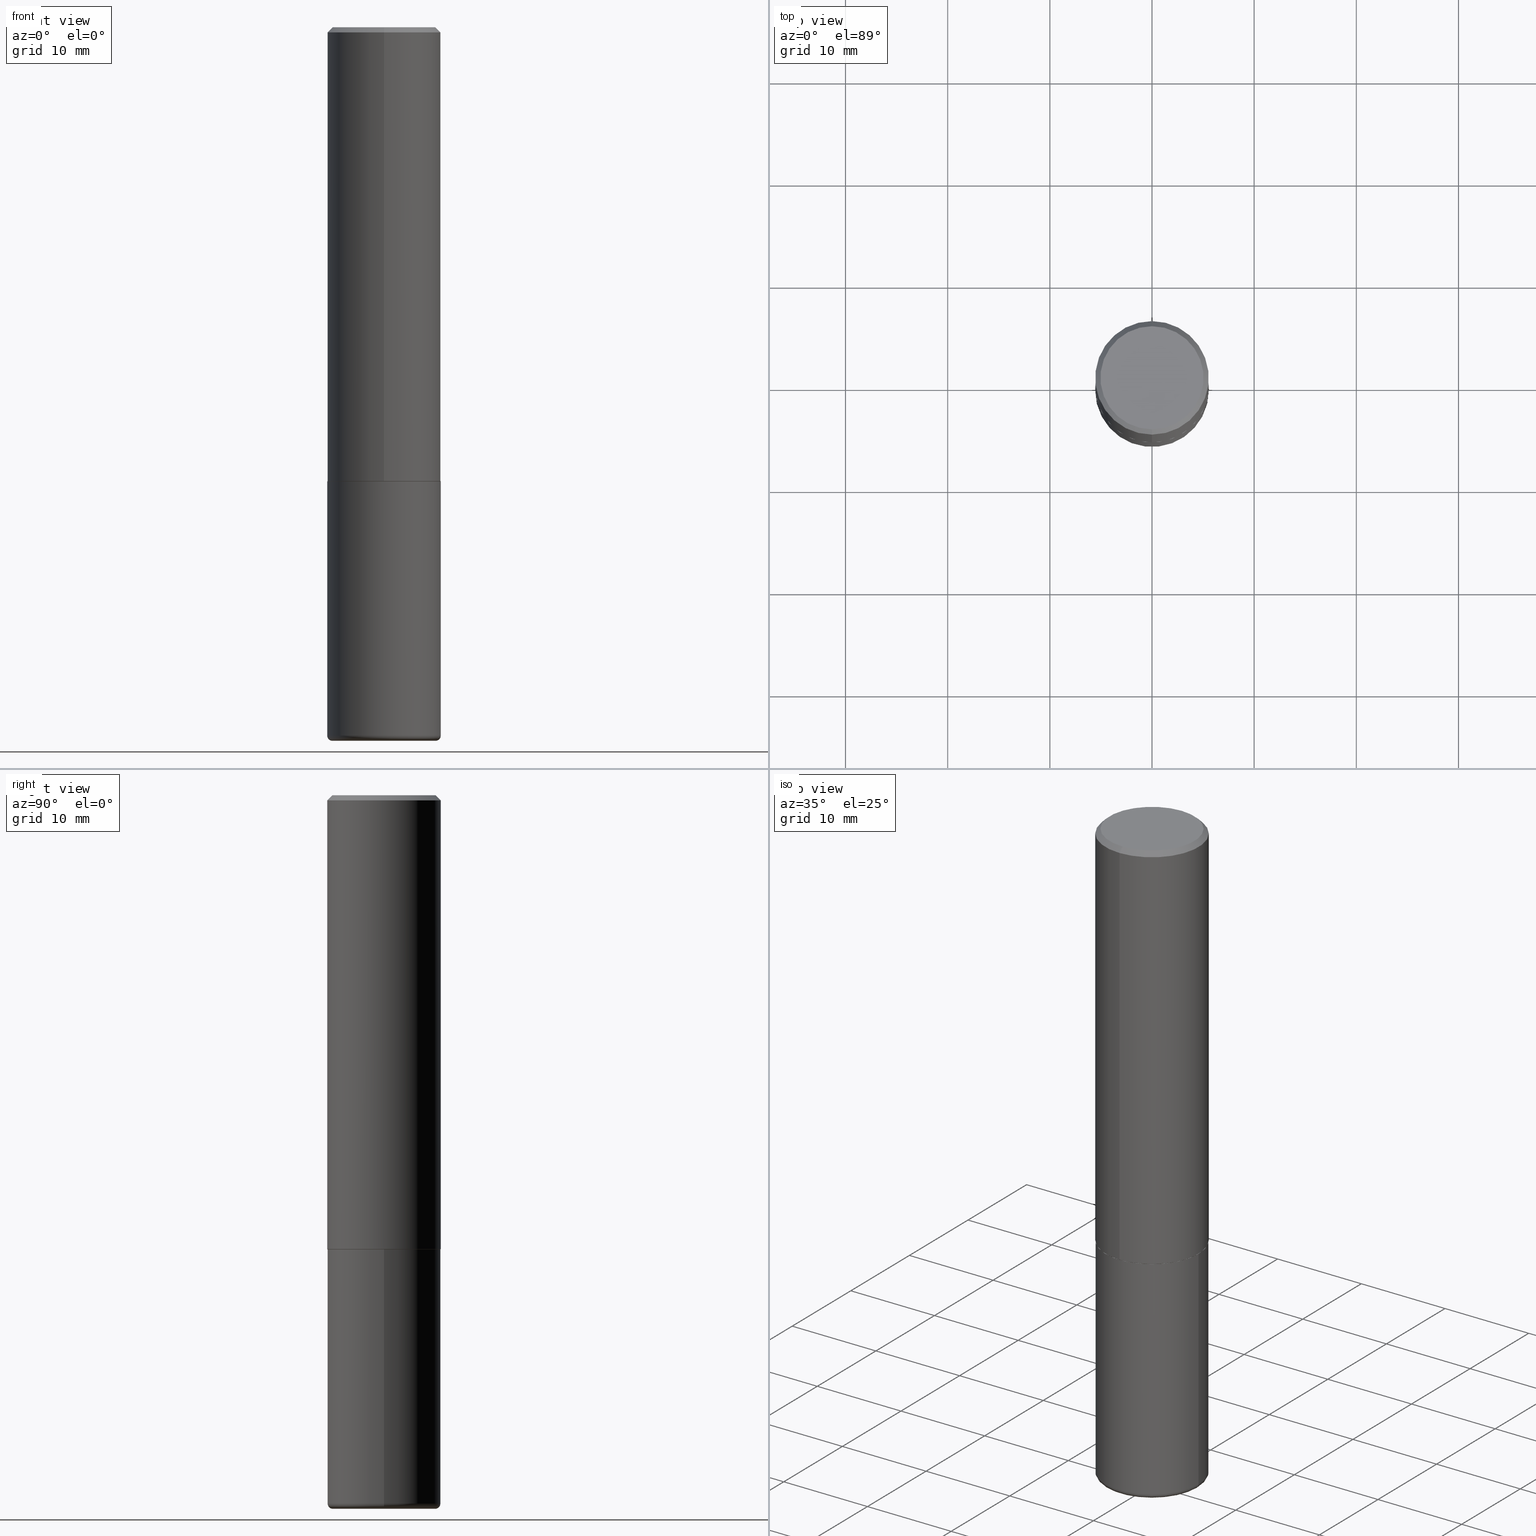
[diagram: canonical four-view strip — front | top / right | iso, engineering-drawing reading convention]
A machine part, canonical four-view strip (front | top / right | iso — engineering-drawing reading convention). The complete STEP part file that produces these views, byte-faithful:
ISO-10303-21;
HEADER;
FILE_DESCRIPTION (( 'STEP AP203' ),
    '1' );
FILE_NAME ('36865.STEP',
    '2024-03-01T18:26:18',
    ( '' ),
    ( '' ),
    'SwSTEP 2.0',
    'SolidWorks 2023',
    '' );
FILE_SCHEMA (( 'CONFIG_CONTROL_DESIGN' ));
ENDSEC;

DATA;
#1 = DIRECTION ( 'NONE',  ( -2.445227161221343579E-29, 3.491827388184874306E-15, 1.000000000000000000 ) ) ;
#2 = ORIENTED_EDGE ( 'NONE', *, *, #320, .T. ) ;
#3 = EDGE_CURVE ( 'NONE', #267, #162, #219, .T. ) ;
#4 = FACE_OUTER_BOUND ( 'NONE', #30, .T. ) ;
#5 = VERTEX_POINT ( 'NONE', #379 ) ;
#6 = CIRCLE ( 'NONE', #299, 0.1987499999999998712 ) ;
#7 = LOCAL_TIME ( 13, 26, 18.00000000000000000, #413 ) ;
#8 = EDGE_CURVE ( 'NONE', #330, #227, #75, .T. ) ;
#9 = CARTESIAN_POINT ( 'NONE',  ( 0.1987500000000000100, -1.098943751400879489E-14, -2.750000000000000000 ) ) ;
#10 = ORIENTED_EDGE ( 'NONE', *, *, #76, .F. ) ;
#11 = CARTESIAN_POINT ( 'NONE',  ( -1.500733937012521740E-15, -0.2187500000000000555, -0.01999999999999928571 ) ) ;
#12 = ADVANCED_FACE ( 'NONE', ( #344 ), #291, .T. ) ;
#13 = VERTEX_POINT ( 'NONE', #17 ) ;
#14 = DIRECTION ( 'NONE',  ( -2.445227161221343579E-29, 3.491827388184874306E-15, 1.000000000000000000 ) ) ;
#15 = ORIENTED_EDGE ( 'NONE', *, *, #345, .F. ) ;
#16 = CARTESIAN_POINT ( 'NONE',  ( -0.1987500000000000100, -8.119540367718587568E-15, -2.729999999999999982 ) ) ;
#17 = CARTESIAN_POINT ( 'NONE',  ( -1.432128957034806212E-15, -0.1987499999999998712, 8.349303828817255231E-16 ) ) ;
#18 = APPROVAL_PERSON_ORGANIZATION ( #51, #192, #246 ) ;
#19 = CARTESIAN_POINT ( 'NONE',  ( 1.547206807117660550E-15, 0.2177499999999938651, -1.750000000000000666 ) ) ;
#20 = DIRECTION ( 'NONE',  ( -2.445468806185136597E-29, 3.491481338843145583E-15, 1.000000000000000000 ) ) ;
#21 = EDGE_CURVE ( 'NONE', #231, #13, #284, .T. ) ;
#22 = FACE_OUTER_BOUND ( 'NONE', #147, .T. ) ;
#23 = ADVANCED_FACE ( 'NONE', ( #22 ), #153, .T. ) ;
#24 = VECTOR ( 'NONE', #295, 39.37007874015748143 ) ;
#25 = CALENDAR_DATE ( 2024, 1, 3 ) ;
#26 = CIRCLE ( 'NONE', #268, 0.01999999999999988939 ) ;
#27 = DIRECTION ( 'NONE',  ( -2.445468806185136597E-29, 3.491481338843145583E-15, 1.000000000000000000 ) ) ;
#28 = EDGE_LOOP ( 'NONE', ( #360, #281, #310, #72 ) ) ;
#29 = FACE_OUTER_BOUND ( 'NONE', #404, .T. ) ;
#30 = EDGE_LOOP ( 'NONE', ( #398, #191 ) ) ;
#31 = EDGE_CURVE ( 'NONE', #159, #33, #53, .T. ) ;
#32 = FACE_OUTER_BOUND ( 'NONE', #224, .T. ) ;
#33 = VERTEX_POINT ( 'NONE', #214 ) ;
#34 = VECTOR ( 'NONE', #105, 39.37007874015748854 ) ;
#35 = DIRECTION ( 'NONE',  ( 2.438088387897960049E-29, -3.491481338843145188E-15, -1.000000000000000000 ) ) ;
#36 = ORIENTED_EDGE ( 'NONE', *, *, #107, .T. ) ;
#37 = PLANE ( 'NONE',  #209 ) ;
#38 = ORIENTED_EDGE ( 'NONE', *, *, #113, .T. ) ;
#39 = DIRECTION ( 'NONE',  ( -1.000000000000000000, 7.105427357601014480E-15, 0.000000000000000000 ) ) ;
#40 = DIRECTION ( 'NONE',  ( -2.445468806185136597E-29, 3.491481338843145583E-15, 1.000000000000000000 ) ) ;
#41 = VECTOR ( 'NONE', #206, 39.37007874015748143 ) ;
#42 = APPROVAL_PERSON_ORGANIZATION ( #81, #210, #115 ) ;
#43 = APPROVAL ( #280, 'UNSPECIFIED' ) ;
#44 = CARTESIAN_POINT ( 'NONE',  ( -1.527523085743829033E-15, -0.2187500000000062728, -1.748999999999999000 ) ) ;
#45 = EDGE_CURVE ( 'NONE', #13, #231, #6, .T. ) ;
#46 = LENGTH_MEASURE_WITH_UNIT ( LENGTH_MEASURE( 0.02539999999999999897 ), #133 );
#47 = CIRCLE ( 'NONE', #328, 0.2177499999999999991 ) ;
#48 = CALENDAR_DATE ( 2024, 1, 3 ) ;
#49 = SHAPE_DEFINITION_REPRESENTATION ( #87, #179 ) ;
#50 = CIRCLE ( 'NONE', #109, 0.2187500000000001665 ) ;
#51 = PERSON_AND_ORGANIZATION ( #340, #118 ) ;
#52 = PERSON_AND_ORGANIZATION_ROLE ( 'creator' ) ;
#53 = LINE ( 'NONE', #151, #416 ) ;
#54 = EDGE_CURVE ( 'NONE', #371, #392, #307, .T. ) ;
#55 = PRODUCT_RELATED_PRODUCT_CATEGORY ( 'detail', '', ( #326 ) ) ;
#56 = CIRCLE ( 'NONE', #117, 0.2187500000000000000 ) ;
#57 = DIRECTION ( 'NONE',  ( -6.982962677686265922E-15, -1.000000000000000000, 3.491827388184874306E-15 ) ) ;
#58 = AXIS2_PLACEMENT_3D ( 'NONE', #333, #94, #197 ) ;
#59 = ORIENTED_EDGE ( 'NONE', *, *, #324, .F. ) ;
#60 = CARTESIAN_POINT ( 'NONE',  ( 6.725039217009124520E-29, -9.601573681818649859E-15, -2.750000000000000000 ) ) ;
#61 = ORIENTED_EDGE ( 'NONE', *, *, #195, .F. ) ;
#62 = CARTESIAN_POINT ( 'NONE',  ( -0.2187500000000000000, 1.554312234475219157E-15, -1.076017050993260622E-29 ) ) ;
#63 = ORIENTED_EDGE ( 'NONE', *, *, #45, .T. ) ;
#64 = CARTESIAN_POINT ( 'NONE',  ( 0.000000000000000000, 0.000000000000000000, 0.000000000000000000 ) ) ;
#65 = CLOSED_SHELL ( 'NONE', ( #387, #300, #23, #180, #406, #225, #139, #288 ) ) ;
#66 = ORIENTED_EDGE ( 'NONE', *, *, #54, .T. ) ;
#67 = VECTOR ( 'NONE', #202, 39.37007874015748143 ) ;
#68 = CC_DESIGN_SECURITY_CLASSIFICATION ( #409, ( #220 ) ) ;
#69 = FACE_OUTER_BOUND ( 'NONE', #316, .T. ) ;
#70 = VERTEX_POINT ( 'NONE', #185 ) ;
#71 = DIRECTION ( 'NONE',  ( 7.105427357601001859E-15, 1.000000000000000000, -3.491481338843145583E-15 ) ) ;
#72 = ORIENTED_EDGE ( 'NONE', *, *, #113, .F. ) ;
#73 = CYLINDRICAL_SURFACE ( 'NONE', #181, 0.2187500000000000000 ) ;
#74 = ORIENTED_EDGE ( 'NONE', *, *, #88, .F. ) ;
#75 = LINE ( 'NONE', #138, #41 ) ;
#76 = EDGE_CURVE ( 'NONE', #162, #70, #26, .T. ) ;
#77 = CARTESIAN_POINT ( 'NONE',  ( -0.2187499999999999445, -7.977431820566568982E-15, -2.729999999999999982 ) ) ;
#78 = DIRECTION ( 'NONE',  ( -6.982962677686265133E-15, -1.000000000000000000, 3.491827388184873912E-15 ) ) ;
#79 = DIRECTION ( 'NONE',  ( -2.445227161221343579E-29, 3.491827388184874306E-15, 1.000000000000000000 ) ) ;
#80 = CIRCLE ( 'NONE', #327, 0.2187500000000000000 ) ;
#81 = PERSON_AND_ORGANIZATION ( #340, #118 ) ;
#82 = PERSON_AND_ORGANIZATION ( #340, #118 ) ;
#83 = DIRECTION ( 'NONE',  ( -2.445468806185136597E-29, 3.491481338843145583E-15, 1.000000000000000000 ) ) ;
#84 = CALENDAR_DATE ( 2024, 1, 3 ) ;
#85 = AXIS2_PLACEMENT_3D ( 'NONE', #190, #91, #261 ) ;
#86 = DATE_AND_TIME ( #84, #198 ) ;
#87 = PRODUCT_DEFINITION_SHAPE ( 'NONE', 'NONE',  #257 ) ;
#88 = EDGE_CURVE ( 'NONE', #392, #371, #80, .T. ) ;
#89 = DIRECTION ( 'NONE',  ( -2.445468806185136597E-29, 3.491481338843145583E-15, 1.000000000000000000 ) ) ;
#90 = AXIS2_PLACEMENT_3D ( 'NONE', #303, #356, #57 ) ;
#91 = DIRECTION ( 'NONE',  ( -2.445468806185136597E-29, 3.491481338843145583E-15, 1.000000000000000000 ) ) ;
#92 = LOCAL_TIME ( 13, 26, 18.00000000000000000, #122 ) ;
#93 = ORIENTED_EDGE ( 'NONE', *, *, #3, .F. ) ;
#94 = DIRECTION ( 'NONE',  ( -2.445468806185136597E-29, 3.491481338843145583E-15, 1.000000000000000000 ) ) ;
#95 = EDGE_CURVE ( 'NONE', #5, #339, #134, .T. ) ;
#96 = EDGE_LOOP ( 'NONE', ( #172, #38, #363, #337 ) ) ;
#97 = FACE_OUTER_BOUND ( 'NONE', #233, .T. ) ;
#98 = ORIENTED_EDGE ( 'NONE', *, *, #45, .F. ) ;
#99 = DIRECTION ( 'NONE',  ( 6.982962677686265922E-15, 1.000000000000000000, -3.491827388184874306E-15 ) ) ;
#100 = ORIENTED_EDGE ( 'NONE', *, *, #415, .F. ) ;
#101 = VECTOR ( 'NONE', #309, 39.37007874015748854 ) ;
#102 = DIRECTION ( 'NONE',  ( 5.024295867788319558E-15, 0.7071067811865862085, 0.7071067811865088260 ) ) ;
#103 = ORIENTED_EDGE ( 'NONE', *, *, #324, .T. ) ;
#104 = CC_DESIGN_DATE_AND_TIME_ASSIGNMENT ( #184, #355, ( #409 ) ) ;
#105 = DIRECTION ( 'NONE',  ( -4.937700262164799689E-15, -0.7071067811865812125, 0.7071067811865135999 ) ) ;
#106 = FACE_OUTER_BOUND ( 'NONE', #194, .T. ) ;
#107 = EDGE_CURVE ( 'NONE', #70, #395, #248, .T. ) ;
#108 = ORIENTED_EDGE ( 'NONE', *, *, #207, .F. ) ;
#109 = AXIS2_PLACEMENT_3D ( 'NONE', #385, #247, #382 ) ;
#110 = CIRCLE ( 'NONE', #85, 0.2187500000000000000 ) ;
#111 =( NAMED_UNIT ( * ) SI_UNIT ( $, .STERADIAN. ) SOLID_ANGLE_UNIT ( ) );
#112 = DIRECTION ( 'NONE',  ( 1.000000000000000000, -6.982962677686265133E-15, 0.000000000000000000 ) ) ;
#113 = EDGE_CURVE ( 'NONE', #159, #330, #50, .T. ) ;
#114 = CARTESIAN_POINT ( 'NONE',  ( 0.2187500000000000000, -1.527523085743870843E-15, 1.066663669705360885E-29 ) ) ;
#115 = APPROVAL_ROLE ( '' ) ;
#116 = ORIENTED_EDGE ( 'NONE', *, *, #88, .T. ) ;
#117 = AXIS2_PLACEMENT_3D ( 'NONE', #256, #359, #226 ) ;
#118 = ORGANIZATION ( 'UNSPECIFIED', 'UNSPECIFIED', '' ) ;
#119 = PERSON_AND_ORGANIZATION ( #340, #118 ) ;
#120 = DIRECTION ( 'NONE',  ( 1.000000000000000000, -6.982962677686267499E-15, 0.000000000000000000 ) ) ;
#121 = EDGE_CURVE ( 'NONE', #33, #227, #56, .T. ) ;
#122 = COORDINATED_UNIVERSAL_TIME_OFFSET ( 5, 0, .BEHIND. ) ;
#123 = AXIS2_PLACEMENT_3D ( 'NONE', #374, #20, #112 ) ;
#124 = DIRECTION ( 'NONE',  ( -2.445468806185136597E-29, 3.491481338843145583E-15, 1.000000000000000000 ) ) ;
#125 = DIRECTION ( 'NONE',  ( -2.445227161221343579E-29, 3.491827388184874306E-15, 1.000000000000000000 ) ) ;
#126 = CARTESIAN_POINT ( 'NONE',  ( 4.279147532137350632E-29, -6.110697929323530529E-15, -1.750000000000000000 ) ) ;
#127 = CYLINDRICAL_SURFACE ( 'NONE', #173, 0.2187500000000000000 ) ;
#128 = CIRCLE ( 'NONE', #381, 0.01999999999999988939 ) ;
#129 = DIRECTION ( 'NONE',  ( 1.000000000000000000, -6.982962677686265133E-15, 0.000000000000000000 ) ) ;
#130 = ORIENTED_EDGE ( 'NONE', *, *, #274, .F. ) ;
#131 = CARTESIAN_POINT ( 'NONE',  ( -0.1987500000000000100, -8.083400907531010713E-15, -2.750000000000000000 ) ) ;
#132 = ORIENTED_EDGE ( 'NONE', *, *, #8, .F. ) ;
#133 =( LENGTH_UNIT ( ) NAMED_UNIT ( * ) SI_UNIT ( $, .METRE. ) );
#134 = CIRCLE ( 'NONE', #187, 0.2177499999999999991 ) ;
#135 = ORIENTED_EDGE ( 'NONE', *, *, #361, .F. ) ;
#136 = AXIS2_PLACEMENT_3D ( 'NONE', #266, #263, #397 ) ;
#137 = CC_DESIGN_PERSON_AND_ORGANIZATION_ASSIGNMENT ( #348, #386, ( #220 ) ) ;
#138 = CARTESIAN_POINT ( 'NONE',  ( -1.527523085743871237E-15, -0.2187500000000000833, 7.638372411654415133E-16 ) ) ;
#139 = ADVANCED_FACE ( 'NONE', ( #4 ), #163, .F. ) ;
#140 = CARTESIAN_POINT ( 'NONE',  ( 1.527523085743871040E-15, 0.2187499999999999167, -0.02000000000000081574 ) ) ;
#141 = CC_DESIGN_PERSON_AND_ORGANIZATION_ASSIGNMENT ( #414, #52, ( #257 ) ) ;
#142 = LINE ( 'NONE', #114, #168 ) ;
#143 = EDGE_LOOP ( 'NONE', ( #59, #199, #235, #298 ) ) ;
#144 = AXIS2_PLACEMENT_3D ( 'NONE', #149, #40, #368 ) ;
#145 = CIRCLE ( 'NONE', #260, 0.1987500000000000100 ) ;
#146 = DIRECTION ( 'NONE',  ( -6.982962677686265922E-15, -1.000000000000000000, 3.763740060157423393E-15 ) ) ;
#147 = EDGE_LOOP ( 'NONE', ( #98, #103, #2, #167 ) ) ;
#148 = DIRECTION ( 'NONE',  ( 1.000000000000000000, 0.000000000000000000, 0.000000000000000000 ) ) ;
#149 = CARTESIAN_POINT ( 'NONE',  ( 6.676129840885423672E-29, -9.531744055041786561E-15, -2.729999999999999982 ) ) ;
#150 = PERSON_AND_ORGANIZATION_ROLE ( 'design_owner' ) ;
#151 = CARTESIAN_POINT ( 'NONE',  ( 1.554312234475219551E-15, 0.2187500000000000833, -7.638372411654415133E-16 ) ) ;
#152 = CC_DESIGN_APPROVAL ( #43, ( #409 ) ) ;
#153 = CONICAL_SURFACE ( 'NONE', #402, 0.2187500000000000000, 0.7853981633974467247 ) ;
#154 = AXIS2_PLACEMENT_3D ( 'NONE', #276, #411, #146 ) ;
#155 = DIRECTION ( 'NONE',  ( -2.445227161221343579E-29, 3.491827388184874306E-15, 1.000000000000000000 ) ) ;
#156 = LINE ( 'NONE', #62, #24 ) ;
#157 = ORIENTED_EDGE ( 'NONE', *, *, #21, .T. ) ;
#158 = PLANE ( 'NONE',  #136 ) ;
#159 = VERTEX_POINT ( 'NONE', #230 ) ;
#160 = DIRECTION ( 'NONE',  ( -2.445227161221343579E-29, 3.491827388184874306E-15, 1.000000000000000000 ) ) ;
#161 = LOCAL_TIME ( 13, 26, 18.00000000000000000, #216 ) ;
#162 = VERTEX_POINT ( 'NONE', #9 ) ;
#163 = PLANE ( 'NONE',  #90 ) ;
#164 = ORIENTED_EDGE ( 'NONE', *, *, #274, .T. ) ;
#165 = DIRECTION ( 'NONE',  ( 2.445227161221343299E-29, -3.491827388184874306E-15, -1.000000000000000000 ) ) ;
#166 = LINE ( 'NONE', #19, #315 ) ;
#167 = ORIENTED_EDGE ( 'NONE', *, *, #312, .F. ) ;
#168 = VECTOR ( 'NONE', #341, 39.37007874015748143 ) ;
#169 = CARTESIAN_POINT ( 'NONE',  ( -0.2187500000000000000, -6.266605964533427643E-15, -1.750000000000000000 ) ) ;
#170 =( NAMED_UNIT ( * ) PLANE_ANGLE_UNIT ( ) SI_UNIT ( $, .RADIAN. ) );
#171 = FACE_OUTER_BOUND ( 'NONE', #96, .T. ) ;
#172 = ORIENTED_EDGE ( 'NONE', *, *, #31, .F. ) ;
#173 = AXIS2_PLACEMENT_3D ( 'NONE', #64, #27, #258 ) ;
#174 = DIMENSIONAL_EXPONENTS ( 1.000000000000000000, 0.000000000000000000, 0.000000000000000000, 0.000000000000000000, 0.000000000000000000, 0.000000000000000000, 0.000000000000000000 ) ;
#175 = ORIENTED_EDGE ( 'NONE', *, *, #195, .T. ) ;
#176 = APPROVAL_STATUS ( 'not_yet_approved' ) ;
#177 = APPROVAL_DATE_TIME ( #212, #192 ) ;
#178 = DIRECTION ( 'NONE',  ( -6.982962677686265133E-15, -1.000000000000000000, 3.491827388184873912E-15 ) ) ;
#179 = ADVANCED_BREP_SHAPE_REPRESENTATION ( '36865', ( #396, #390, #335 ), #372 ) ;
#180 = ADVANCED_FACE ( 'NONE', ( #338 ), #393, .T. ) ;
#181 = AXIS2_PLACEMENT_3D ( 'NONE', #369, #236, #313 ) ;
#182 = PERSON_AND_ORGANIZATION_ROLE ( 'creator' ) ;
#183 = ADVANCED_FACE ( 'NONE', ( #189 ), #127, .T. ) ;
#184 = DATE_AND_TIME ( #48, #161 ) ;
#185 = CARTESIAN_POINT ( 'NONE',  ( 0.2187499999999999445, -1.105926714078565662E-14, -2.729999999999999982 ) ) ;
#186 = DIRECTION ( 'NONE',  ( -2.445227161221343579E-29, 3.491827388184874306E-15, 1.000000000000000000 ) ) ;
#187 = AXIS2_PLACEMENT_3D ( 'NONE', #350, #418, #319 ) ;
#188 = CIRCLE ( 'NONE', #403, 0.2187500000000000000 ) ;
#189 = FACE_OUTER_BOUND ( 'NONE', #401, .T. ) ;
#190 = CARTESIAN_POINT ( 'NONE',  ( 6.676129840885423672E-29, -9.531744055041786561E-15, -2.729999999999999982 ) ) ;
#191 = ORIENTED_EDGE ( 'NONE', *, *, #95, .F. ) ;
#192 = APPROVAL ( #380, 'UNSPECIFIED' ) ;
#193 = CARTESIAN_POINT ( 'NONE',  ( 1.457693458967007742E-15, 0.1987499999999998712, -5.530710039217610009E-16 ) ) ;
#194 = EDGE_LOOP ( 'NONE', ( #61, #239, #332, #259 ) ) ;
#195 = EDGE_CURVE ( 'NONE', #395, #371, #156, .T. ) ;
#196 = AXIS2_PLACEMENT_3D ( 'NONE', #242, #376, #78 ) ;
#197 = DIRECTION ( 'NONE',  ( 1.000000000000000000, -6.982962677686266711E-15, 4.883557194083112901E-29 ) ) ;
#198 = LOCAL_TIME ( 13, 26, 18.00000000000000000, #249 ) ;
#199 = ORIENTED_EDGE ( 'NONE', *, *, #21, .F. ) ;
#200 = CYLINDRICAL_SURFACE ( 'NONE', #292, 0.2187500000000000833 ) ;
#201 = EDGE_LOOP ( 'NONE', ( #164, #304, #296, #10 ) ) ;
#202 = DIRECTION ( 'NONE',  ( 4.937700262164540154E-15, 0.7071067811865440200, -0.7071067811865511255 ) ) ;
#203 = CARTESIAN_POINT ( 'NONE',  ( 0.2187500000000000000, -7.637615428719375514E-15, -1.750000000000000000 ) ) ;
#204 = AXIS2_PLACEMENT_3D ( 'NONE', #329, #223, #297 ) ;
#205 = CARTESIAN_POINT ( 'NONE',  ( -1.520540123066141639E-15, -0.2177500000000061053, -1.749999999999999112 ) ) ;
#206 = DIRECTION ( 'NONE',  ( -2.445227161221343579E-29, 3.491827388184874306E-15, 1.000000000000000000 ) ) ;
#207 = EDGE_CURVE ( 'NONE', #395, #70, #110, .T. ) ;
#208 = AXIS2_PLACEMENT_3D ( 'NONE', #388, #412, #120 ) ;
#209 = AXIS2_PLACEMENT_3D ( 'NONE', #60, #35, #331 ) ;
#210 = APPROVAL ( #176, 'UNSPECIFIED' ) ;
#211 = DIRECTION ( 'NONE',  ( 0.000000000000000000, 0.000000000000000000, 1.000000000000000000 ) ) ;
#212 = DATE_AND_TIME ( #322, #357 ) ;
#213 = DATE_AND_TIME ( #286, #7 ) ;
#214 = CARTESIAN_POINT ( 'NONE',  ( 1.527523085743871040E-15, 0.2187499999999999167, -0.02000000000000081574 ) ) ;
#215 = ADVANCED_FACE ( 'NONE', ( #221 ), #417, .T. ) ;
#216 = COORDINATED_UNIVERSAL_TIME_OFFSET ( 5, 0, .BEHIND. ) ;
#217 = APPROVAL_DATE_TIME ( #255, #43 ) ;
#218 = LINE ( 'NONE', #140, #67 ) ;
#219 = CIRCLE ( 'NONE', #123, 0.1987500000000000100 ) ;
#220 = PRODUCT_DEFINITION_FORMATION_WITH_SPECIFIED_SOURCE ( 'ANY', '', #326, .NOT_KNOWN. ) ;
#221 = FACE_OUTER_BOUND ( 'NONE', #271, .T. ) ;
#222 = ORIENTED_EDGE ( 'NONE', *, *, #76, .T. ) ;
#223 = DIRECTION ( 'NONE',  ( 2.445227161221343579E-29, -3.491827388184874306E-15, -1.000000000000000000 ) ) ;
#224 = EDGE_LOOP ( 'NONE', ( #130, #93 ) ) ;
#225 = ADVANCED_FACE ( 'NONE', ( #394 ), #308, .T. ) ;
#226 = DIRECTION ( 'NONE',  ( -6.982962677686265133E-15, -1.000000000000000000, 3.492862791899308071E-15 ) ) ;
#227 = VERTEX_POINT ( 'NONE', #11 ) ;
#228 = EDGE_CURVE ( 'NONE', #339, #5, #47, .T. ) ;
#229 = AXIS2_PLACEMENT_3D ( 'NONE', #336, #1, #391 ) ;
#230 = CARTESIAN_POINT ( 'NONE',  ( 1.554312234475241442E-15, 0.2187499999999940603, -1.749000000000000554 ) ) ;
#231 = VERTEX_POINT ( 'NONE', #193 ) ;
#232 = CARTESIAN_POINT ( 'NONE',  ( 0.000000000000000000, 0.000000000000000000, 0.000000000000000000 ) ) ;
#233 = EDGE_LOOP ( 'NONE', ( #157, #63 ) ) ;
#234 = CARTESIAN_POINT ( 'NONE',  ( -1.500733937012521740E-15, -0.2187500000000000555, -0.01999999999999928571 ) ) ;
#235 = ORIENTED_EDGE ( 'NONE', *, *, #312, .T. ) ;
#236 = DIRECTION ( 'NONE',  ( -2.445468806185136597E-29, 3.491481338843145583E-15, 1.000000000000000000 ) ) ;
#237 = ADVANCED_FACE ( 'NONE', ( #32 ), #37, .T. ) ;
#238 = AXIS2_PLACEMENT_3D ( 'NONE', #287, #83, #251 ) ;
#239 = ORIENTED_EDGE ( 'NONE', *, *, #207, .T. ) ;
#240 = AXIS2_PLACEMENT_3D ( 'NONE', #410, #244, #241 ) ;
#241 = DIRECTION ( 'NONE',  ( -6.982962677686265922E-15, -1.000000000000000000, 3.491827388184874306E-15 ) ) ;
#242 = CARTESIAN_POINT ( 'NONE',  ( -3.446051045389423421E-45, 4.921021495345916979E-31, 1.409296894799822118E-16 ) ) ;
#243 = UNCERTAINTY_MEASURE_WITH_UNIT (LENGTH_MEASURE( 1.000000000000000082E-05 ), #343, 'distance_accuracy_value', 'NONE');
#244 = DIRECTION ( 'NONE',  ( -2.445227161221343579E-29, 3.491827388184874306E-15, 1.000000000000000000 ) ) ;
#245 = CC_DESIGN_PERSON_AND_ORGANIZATION_ASSIGNMENT ( #282, #182, ( #220 ) ) ;
#246 = APPROVAL_ROLE ( '' ) ;
#247 = DIRECTION ( 'NONE',  ( -2.445227161221343579E-29, 3.491827388184874306E-15, 1.000000000000000000 ) ) ;
#248 = CIRCLE ( 'NONE', #238, 0.2187500000000000000 ) ;
#249 = COORDINATED_UNIVERSAL_TIME_OFFSET ( 5, 0, .BEHIND. ) ;
#250 = CARTESIAN_POINT ( 'NONE',  ( 0.1987500000000000100, -1.091960788723193160E-14, -2.729999999999999982 ) ) ;
#251 = DIRECTION ( 'NONE',  ( 1.000000000000000000, -6.982962677686262766E-15, 0.000000000000000000 ) ) ;
#252 = APPROVAL_DATE_TIME ( #213, #210 ) ;
#253 = DIRECTION ( 'NONE',  ( 2.445227161221343579E-29, -3.491827388184874306E-15, -1.000000000000000000 ) ) ;
#254 = CC_DESIGN_APPROVAL ( #210, ( #220 ) ) ;
#255 = DATE_AND_TIME ( #25, #92 ) ;
#256 = CARTESIAN_POINT ( 'NONE',  ( 4.890454322442699524E-31, -6.983654776369765967E-17, -0.02000000000000005246 ) ) ;
#257 = PRODUCT_DEFINITION ( 'UNKNOWN', '', #220, #364 ) ;
#258 = DIRECTION ( 'NONE',  ( 1.000000000000000000, -6.982962677686266711E-15, 4.876176775795935232E-29 ) ) ;
#259 = ORIENTED_EDGE ( 'NONE', *, *, #54, .F. ) ;
#260 = AXIS2_PLACEMENT_3D ( 'NONE', #301, #89, #129 ) ;
#261 = DIRECTION ( 'NONE',  ( 1.000000000000000000, -6.982962677686262766E-15, 0.000000000000000000 ) ) ;
#262 = ORIENTED_EDGE ( 'NONE', *, *, #228, .T. ) ;
#263 = DIRECTION ( 'NONE',  ( 2.438088387897960049E-29, -3.491481338843145188E-15, -1.000000000000000000 ) ) ;
#264 = CC_DESIGN_DATE_AND_TIME_ASSIGNMENT ( #86, #383, ( #257 ) ) ;
#265 = ORIENTED_EDGE ( 'NONE', *, *, #314, .T. ) ;
#266 = CARTESIAN_POINT ( 'NONE',  ( 4.279570410823988484E-29, -6.110092342975504671E-15, -1.750000000000000000 ) ) ;
#267 = VERTEX_POINT ( 'NONE', #131 ) ;
#268 = AXIS2_PLACEMENT_3D ( 'NONE', #250, #325, #384 ) ;
#269 = AXIS2_PLACEMENT_3D ( 'NONE', #378, #79, #373 ) ;
#270 = APPLICATION_PROTOCOL_DEFINITION ( 'international standard', 'config_control_design', 1994, #377 ) ;
#271 = EDGE_LOOP ( 'NONE', ( #273, #334, #222, #108 ) ) ;
#272 = DIRECTION ( 'NONE',  ( -6.982962677686265133E-15, -1.000000000000000000, 3.492862791899308071E-15 ) ) ;
#273 = ORIENTED_EDGE ( 'NONE', *, *, #370, .F. ) ;
#274 = EDGE_CURVE ( 'NONE', #162, #267, #145, .T. ) ;
#275 = LINE ( 'NONE', #234, #101 ) ;
#276 = CARTESIAN_POINT ( 'NONE',  ( 4.279147532137350632E-29, -6.110697929323530529E-15, -1.750000000000000000 ) ) ;
#277 = CC_DESIGN_APPROVAL ( #192, ( #257 ) ) ;
#278 = CYLINDRICAL_SURFACE ( 'NONE', #240, 0.2187500000000000833 ) ;
#279 = ADVANCED_FACE ( 'NONE', ( #29 ), #158, .F. ) ;
#280 = APPROVAL_STATUS ( 'not_yet_approved' ) ;
#281 = ORIENTED_EDGE ( 'NONE', *, *, #95, .T. ) ;
#282 = PERSON_AND_ORGANIZATION ( #340, #118 ) ;
#283 = CARTESIAN_POINT ( 'NONE',  ( -3.446051045389423421E-45, 4.921021495345916979E-31, 1.409296894799822118E-16 ) ) ;
#284 = CIRCLE ( 'NONE', #196, 0.1987499999999998712 ) ;
#285 = CIRCLE ( 'NONE', #269, 0.2187500000000001665 ) ;
#286 = CALENDAR_DATE ( 2024, 1, 3 ) ;
#287 = CARTESIAN_POINT ( 'NONE',  ( 6.676129840885423672E-29, -9.531744055041786561E-15, -2.729999999999999982 ) ) ;
#288 = ADVANCED_FACE ( 'NONE', ( #97 ), #362, .F. ) ;
#289 = APPLICATION_PROTOCOL_DEFINITION ( 'international standard', 'config_control_design', 1994, #399 ) ;
#290 = PERSON_AND_ORGANIZATION ( #340, #118 ) ;
#291 = TOROIDAL_SURFACE ( 'NONE', #144, 0.1987500000000000100, 0.01999999999999988939 ) ;
#292 = AXIS2_PLACEMENT_3D ( 'NONE', #305, #125, #389 ) ;
#293 = DIRECTION ( 'NONE',  ( 1.000000000000000000, -6.982962677686267499E-15, 0.000000000000000000 ) ) ;
#294 = CC_DESIGN_PERSON_AND_ORGANIZATION_ASSIGNMENT ( #82, #150, ( #326 ) ) ;
#295 = DIRECTION ( 'NONE',  ( -2.445468806185136877E-29, 3.491481338843145188E-15, 1.000000000000000000 ) ) ;
#296 = ORIENTED_EDGE ( 'NONE', *, *, #107, .F. ) ;
#297 = DIRECTION ( 'NONE',  ( 6.982962677686265133E-15, 1.000000000000000000, -3.492862791899308071E-15 ) ) ;
#298 = ORIENTED_EDGE ( 'NONE', *, *, #121, .T. ) ;
#299 = AXIS2_PLACEMENT_3D ( 'NONE', #283, #155, #178 ) ;
#300 = ADVANCED_FACE ( 'NONE', ( #69 ), #200, .T. ) ;
#301 = CARTESIAN_POINT ( 'NONE',  ( 6.725039217009124520E-29, -9.601573681818649859E-15, -2.750000000000000000 ) ) ;
#302 = ORIENTED_EDGE ( 'NONE', *, *, #320, .F. ) ;
#303 = CARTESIAN_POINT ( 'NONE',  ( 4.279147532137350632E-29, -6.110697929323530529E-15, -1.750000000000000000 ) ) ;
#304 = ORIENTED_EDGE ( 'NONE', *, *, #370, .T. ) ;
#305 = CARTESIAN_POINT ( 'NONE',  ( 0.000000000000000000, 0.000000000000000000, 0.000000000000000000 ) ) ;
#306 = ORIENTED_EDGE ( 'NONE', *, *, #415, .T. ) ;
#307 = CIRCLE ( 'NONE', #208, 0.2187500000000000000 ) ;
#308 = CONICAL_SURFACE ( 'NONE', #229, 0.2177499999999999991, 0.7853981633974995713 ) ;
#309 = DIRECTION ( 'NONE',  ( -4.851104656540955597E-15, -0.7071067811865487940, -0.7071067811865461294 ) ) ;
#310 = ORIENTED_EDGE ( 'NONE', *, *, #361, .T. ) ;
#311 = CC_DESIGN_PERSON_AND_ORGANIZATION_ASSIGNMENT ( #290, #317, ( #409 ) ) ;
#312 = EDGE_CURVE ( 'NONE', #231, #33, #218, .T. ) ;
#313 = DIRECTION ( 'NONE',  ( 1.000000000000000000, -6.982962677686266711E-15, 4.876176775795935232E-29 ) ) ;
#314 = EDGE_CURVE ( 'NONE', #5, #159, #166, .T. ) ;
#315 = VECTOR ( 'NONE', #102, 39.37007874015748143 ) ;
#316 = EDGE_LOOP ( 'NONE', ( #306, #408, #302, #132 ) ) ;
#317 = PERSON_AND_ORGANIZATION_ROLE ( 'classification_officer' ) ;
#318 = DIRECTION ( 'NONE',  ( 6.982962677686265133E-15, 1.000000000000000000, -3.492862791899308071E-15 ) ) ;
#319 = DIRECTION ( 'NONE',  ( -6.982962677686265922E-15, -1.000000000000000000, 3.763740060157423393E-15 ) ) ;
#320 = EDGE_CURVE ( 'NONE', #227, #33, #188, .T. ) ;
#321 = SECURITY_CLASSIFICATION_LEVEL ( 'unclassified' ) ;
#322 = CALENDAR_DATE ( 2024, 1, 3 ) ;
#323 = CARTESIAN_POINT ( 'NONE',  ( 4.279570410823988484E-29, -6.110092342975504671E-15, -1.750000000000000000 ) ) ;
#324 = EDGE_CURVE ( 'NONE', #13, #227, #275, .T. ) ;
#325 = DIRECTION ( 'NONE',  ( -6.982962677686266711E-15, -1.000000000000000000, 3.491481338843145583E-15 ) ) ;
#326 = PRODUCT ( '36865', '36865', '', ( #353 ) ) ;
#327 = AXIS2_PLACEMENT_3D ( 'NONE', #323, #124, #293 ) ;
#328 = AXIS2_PLACEMENT_3D ( 'NONE', #126, #160, #358 ) ;
#329 = CARTESIAN_POINT ( 'NONE',  ( 4.890454322442699524E-31, -6.983654776369765967E-17, -0.02000000000000005246 ) ) ;
#330 = VERTEX_POINT ( 'NONE', #44 ) ;
#331 = DIRECTION ( 'NONE',  ( -1.000000000000000000, 6.982962677686265922E-15, -4.876176775795935793E-29 ) ) ;
#332 = ORIENTED_EDGE ( 'NONE', *, *, #345, .T. ) ;
#333 = CARTESIAN_POINT ( 'NONE',  ( 6.676129840885423672E-29, -9.531744055041786561E-15, -2.729999999999999982 ) ) ;
#334 = ORIENTED_EDGE ( 'NONE', *, *, #3, .T. ) ;
#335 = AXIS2_PLACEMENT_3D ( 'NONE', #232, #211, #148 ) ;
#336 = CARTESIAN_POINT ( 'NONE',  ( 4.279147532137350632E-29, -6.110697929323530529E-15, -1.750000000000000000 ) ) ;
#337 = ORIENTED_EDGE ( 'NONE', *, *, #121, .F. ) ;
#338 = FACE_OUTER_BOUND ( 'NONE', #143, .T. ) ;
#339 = VERTEX_POINT ( 'NONE', #405 ) ;
#340 = PERSON ( 'UNSPECIFIED', 'UNSPECIFIED', 'UNSPECIFIED', ('UNSPECIFIED'), ('UNSPECIFIED'), ('UNSPECIFIED') ) ;
#341 = DIRECTION ( 'NONE',  ( -2.445468806185136877E-29, 3.491481338843145188E-15, 1.000000000000000000 ) ) ;
#342 = APPROVAL_PERSON_ORGANIZATION ( #119, #43, #349 ) ;
#343 =( CONVERSION_BASED_UNIT ( 'INCH', #46 ) LENGTH_UNIT ( ) NAMED_UNIT ( #174 ) );
#344 = FACE_OUTER_BOUND ( 'NONE', #201, .T. ) ;
#345 = EDGE_CURVE ( 'NONE', #70, #392, #142, .T. ) ;
#346 = CLOSED_SHELL ( 'NONE', ( #183, #12, #279, #366, #215, #237 ) ) ;
#347 = CONICAL_SURFACE ( 'NONE', #154, 0.2177499999999999991, 0.7853981633974995713 ) ;
#348 = PERSON_AND_ORGANIZATION ( #340, #118 ) ;
#349 = APPROVAL_ROLE ( '' ) ;
#350 = CARTESIAN_POINT ( 'NONE',  ( 4.279147532137350632E-29, -6.110697929323530529E-15, -1.750000000000000000 ) ) ;
#351 = COORDINATED_UNIVERSAL_TIME_OFFSET ( 5, 0, .BEHIND. ) ;
#352 = AXIS2_PLACEMENT_3D ( 'NONE', #400, #165, #99 ) ;
#353 = MECHANICAL_CONTEXT ( 'NONE', #377, 'mechanical' ) ;
#354 = CARTESIAN_POINT ( 'NONE',  ( 4.890454322442699524E-31, -6.983654776369765967E-17, -0.02000000000000005246 ) ) ;
#355 = DATE_TIME_ROLE ( 'classification_date' ) ;
#356 = DIRECTION ( 'NONE',  ( -2.445227161221343299E-29, 3.491827388184874306E-15, 1.000000000000000000 ) ) ;
#357 = LOCAL_TIME ( 13, 26, 18.00000000000000000, #351 ) ;
#358 = DIRECTION ( 'NONE',  ( -6.982962677686265922E-15, -1.000000000000000000, 3.763740060157423393E-15 ) ) ;
#359 = DIRECTION ( 'NONE',  ( -2.445227161221343579E-29, 3.491827388184874306E-15, 1.000000000000000000 ) ) ;
#360 = ORIENTED_EDGE ( 'NONE', *, *, #314, .F. ) ;
#361 = EDGE_CURVE ( 'NONE', #339, #330, #367, .T. ) ;
#362 = PLANE ( 'NONE',  #352 ) ;
#363 = ORIENTED_EDGE ( 'NONE', *, *, #8, .T. ) ;
#364 = DESIGN_CONTEXT ( 'detailed design', #399, 'design' ) ;
#365 = EDGE_LOOP ( 'NONE', ( #262, #265, #100, #135 ) ) ;
#366 = ADVANCED_FACE ( 'NONE', ( #106 ), #73, .T. ) ;
#367 = LINE ( 'NONE', #205, #34 ) ;
#368 = DIRECTION ( 'NONE',  ( 1.000000000000000000, -6.982962677686266711E-15, 4.883557194083112901E-29 ) ) ;
#369 = CARTESIAN_POINT ( 'NONE',  ( 0.000000000000000000, 0.000000000000000000, 0.000000000000000000 ) ) ;
#370 = EDGE_CURVE ( 'NONE', #267, #395, #128, .T. ) ;
#371 = VERTEX_POINT ( 'NONE', #169 ) ;
#372 =( GEOMETRIC_REPRESENTATION_CONTEXT ( 3 ) GLOBAL_UNCERTAINTY_ASSIGNED_CONTEXT ( ( #243 ) ) GLOBAL_UNIT_ASSIGNED_CONTEXT ( ( #343, #170, #111 ) ) REPRESENTATION_CONTEXT ( 'NONE', 'WORKASPACE' ) );
#373 = DIRECTION ( 'NONE',  ( -6.982962677686265133E-15, -1.000000000000000000, 3.746534391310986401E-15 ) ) ;
#374 = CARTESIAN_POINT ( 'NONE',  ( 6.725039217009124520E-29, -9.601573681818649859E-15, -2.750000000000000000 ) ) ;
#375 = FACE_OUTER_BOUND ( 'NONE', #365, .T. ) ;
#376 = DIRECTION ( 'NONE',  ( -2.445227161221343579E-29, 3.491827388184874306E-15, 1.000000000000000000 ) ) ;
#377 = APPLICATION_CONTEXT ( 'configuration controlled 3d designs of mechanical parts and assemblies' ) ;
#378 = CARTESIAN_POINT ( 'NONE',  ( 4.276702304976129224E-29, -6.107206101935344019E-15, -1.748999999999999888 ) ) ;
#379 = CARTESIAN_POINT ( 'NONE',  ( 1.550759520796461843E-15, 0.2177499999999938651, -1.750000000000000666 ) ) ;
#380 = APPROVAL_STATUS ( 'not_yet_approved' ) ;
#381 = AXIS2_PLACEMENT_3D ( 'NONE', #16, #71, #39 ) ;
#382 = DIRECTION ( 'NONE',  ( -6.982962677686265133E-15, -1.000000000000000000, 3.746534391310986401E-15 ) ) ;
#383 = DATE_TIME_ROLE ( 'creation_date' ) ;
#384 = DIRECTION ( 'NONE',  ( 1.000000000000000000, -6.982962677686274599E-15, 0.000000000000000000 ) ) ;
#385 = CARTESIAN_POINT ( 'NONE',  ( 4.276702304976129224E-29, -6.107206101935344019E-15, -1.748999999999999888 ) ) ;
#386 = PERSON_AND_ORGANIZATION_ROLE ( 'design_supplier' ) ;
#387 = ADVANCED_FACE ( 'NONE', ( #375 ), #347, .T. ) ;
#388 = CARTESIAN_POINT ( 'NONE',  ( 4.279570410823988484E-29, -6.110092342975504671E-15, -1.750000000000000000 ) ) ;
#389 = DIRECTION ( 'NONE',  ( -6.982962677686265922E-15, -1.000000000000000000, 3.491827388184874306E-15 ) ) ;
#390 = MANIFOLD_SOLID_BREP ( 'Body-Move/Copy2[2]', #65 ) ;
#391 = DIRECTION ( 'NONE',  ( -6.982962677686265922E-15, -1.000000000000000000, 3.763740060157423393E-15 ) ) ;
#392 = VERTEX_POINT ( 'NONE', #203 ) ;
#393 = CONICAL_SURFACE ( 'NONE', #204, 0.2187500000000000000, 0.7853981633974467247 ) ;
#394 = FACE_OUTER_BOUND ( 'NONE', #28, .T. ) ;
#395 = VERTEX_POINT ( 'NONE', #77 ) ;
#396 = MANIFOLD_SOLID_BREP ( 'Body-Move/Copy2[1]', #346 ) ;
#397 = DIRECTION ( 'NONE',  ( -1.000000000000000000, 6.982962677686265922E-15, -4.876176775795935793E-29 ) ) ;
#398 = ORIENTED_EDGE ( 'NONE', *, *, #228, .F. ) ;
#399 = APPLICATION_CONTEXT ( 'configuration controlled 3d designs of mechanical parts and assemblies' ) ;
#400 = CARTESIAN_POINT ( 'NONE',  ( 1.387863832190144247E-15, 0.1987499999999998712, -6.235358486617522300E-16 ) ) ;
#401 = EDGE_LOOP ( 'NONE', ( #36, #175, #74, #15 ) ) ;
#402 = AXIS2_PLACEMENT_3D ( 'NONE', #354, #253, #318 ) ;
#403 = AXIS2_PLACEMENT_3D ( 'NONE', #407, #14, #272 ) ;
#404 = EDGE_LOOP ( 'NONE', ( #116, #66 ) ) ;
#405 = CARTESIAN_POINT ( 'NONE',  ( -1.520540123066141639E-15, -0.2177500000000061053, -1.749999999999999112 ) ) ;
#406 = ADVANCED_FACE ( 'NONE', ( #171 ), #278, .T. ) ;
#407 = CARTESIAN_POINT ( 'NONE',  ( 4.890454322442699524E-31, -6.983654776369765967E-17, -0.02000000000000005246 ) ) ;
#408 = ORIENTED_EDGE ( 'NONE', *, *, #31, .T. ) ;
#409 = SECURITY_CLASSIFICATION ( '', '', #321 ) ;
#410 = CARTESIAN_POINT ( 'NONE',  ( 0.000000000000000000, 0.000000000000000000, 0.000000000000000000 ) ) ;
#411 = DIRECTION ( 'NONE',  ( -2.445227161221343579E-29, 3.491827388184874306E-15, 1.000000000000000000 ) ) ;
#412 = DIRECTION ( 'NONE',  ( -2.445468806185136597E-29, 3.491481338843145583E-15, 1.000000000000000000 ) ) ;
#413 = COORDINATED_UNIVERSAL_TIME_OFFSET ( 5, 0, .BEHIND. ) ;
#414 = PERSON_AND_ORGANIZATION ( #340, #118 ) ;
#415 = EDGE_CURVE ( 'NONE', #330, #159, #285, .T. ) ;
#416 = VECTOR ( 'NONE', #186, 39.37007874015748143 ) ;
#417 = TOROIDAL_SURFACE ( 'NONE', #58, 0.1987500000000000100, 0.01999999999999988939 ) ;
#418 = DIRECTION ( 'NONE',  ( -2.445227161221343579E-29, 3.491827388184874306E-15, 1.000000000000000000 ) ) ;
ENDSEC;
END-ISO-10303-21;
